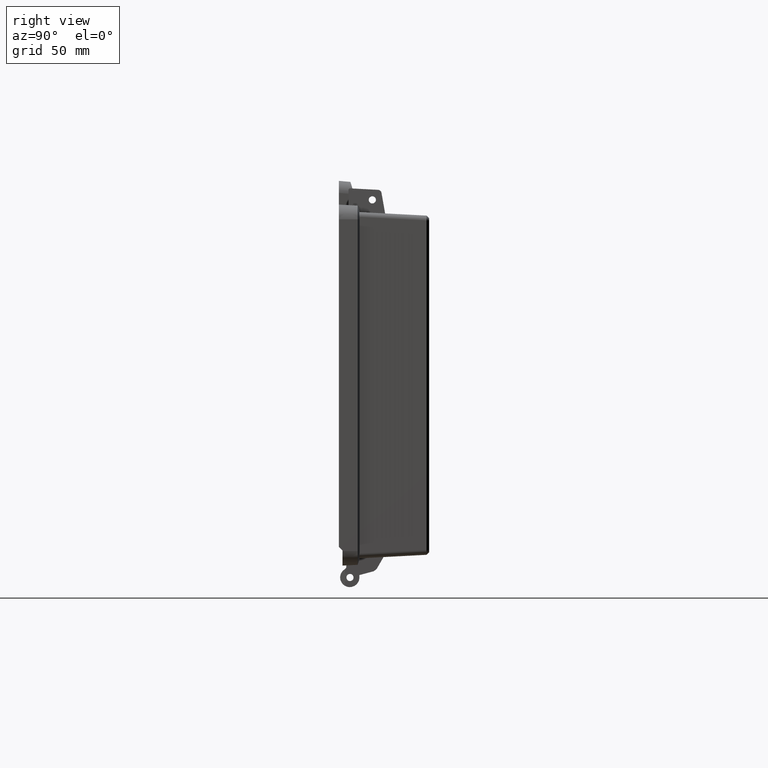
[diagram: clean part render]
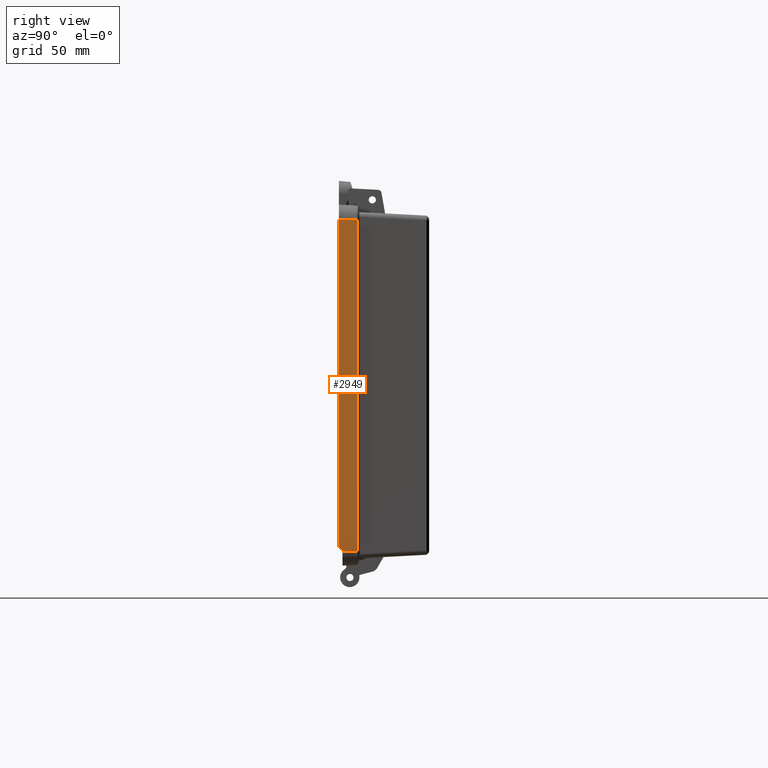
[diagram: same view with one face highlighted and labeled with its STEP entity id]
A machine part, right view. The second image highlights one B-rep face of the part: STEP entity #2949.
In plain terms, the highlighted planar face has unit normal (0.9986, 0.0523, 0).
Its self-contained STEP definition (entity closure, byte-faithful):
#320 = CARTESIAN_POINT ( 'NONE',  ( 125.0524077792830000, -0.9999999999999831200, -68.73550952893730000 ) ) ;
#517 = VERTEX_POINT ( 'NONE', #3892 ) ;
#563 = VERTEX_POINT ( 'NONE', #320 ) ;
#672 = ORIENTED_EDGE ( 'NONE', *, *, #13472, .T. ) ;
#686 = ORIENTED_EDGE ( 'NONE', *, *, #13460, .T. ) ;
#687 = ORIENTED_EDGE ( 'NONE', *, *, #13449, .F. ) ;
#744 = ORIENTED_EDGE ( 'NONE', *, *, #2444, .F. ) ;
#854 = ORIENTED_EDGE ( 'NONE', *, *, #13443, .T. ) ;
#859 = ORIENTED_EDGE ( 'NONE', *, *, #2481, .F. ) ;
#2444 = EDGE_CURVE ( 'NONE', #13699, #13760, #9501, .T. ) ;
#2481 = EDGE_CURVE ( 'NONE', #13632, #13701, #9534, .T. ) ;
#2949 = ADVANCED_FACE ( 'NONE', ( #4589 ), #5404, .T. ) ;
#3892 = CARTESIAN_POINT ( 'NONE',  ( 124.7221525821517400, 5.301644558294508000, 68.99999999999998600 ) ) ;
#3943 = VECTOR ( 'NONE', #6927, 1000.000000000000100 ) ;
#4124 = VECTOR ( 'NONE', #6770, 1000.000000000000000 ) ;
#4589 = FACE_OUTER_BOUND ( 'NONE', #13863, .T. ) ;
#5404 = PLANE ( 'NONE',  #11819 ) ;
#5405 = CARTESIAN_POINT ( 'NONE',  ( 124.9999999999999700, 0.0000000000000000000, -68.99999999999998600 ) ) ;
#5406 = DIRECTION ( 'NONE',  ( 0.9986295347545739400, 0.05233595624294395300, 0.0000000000000000000 ) ) ;
#5407 = DIRECTION ( 'NONE',  ( -0.05233595624294395300, 0.9986295347545739400, 0.0000000000000000000 ) ) ;
#6721 = CARTESIAN_POINT ( 'NONE',  ( 125.1310194482076800, -2.500000000000000000, -68.99999999999998600 ) ) ;
#6770 = DIRECTION ( 'NONE',  ( -3.016910393003143400E-016, 0.0000000000000000000, 1.000000000000000000 ) ) ;
#6927 = DIRECTION ( 'NONE',  ( 0.05233595624294395300, -0.9986295347545739400, -0.0000000000000000000 ) ) ;
#7047 = CARTESIAN_POINT ( 'NONE',  ( 125.0000000000000000, -3.626559582763564200E-016, -68.99999999999998600 ) ) ;
#8512 = CARTESIAN_POINT ( 'NONE',  ( 124.9999999999999700, 0.0000000000000000000, 68.99999999999998600 ) ) ;
#8513 = DIRECTION ( 'NONE',  ( 0.05233595624294395300, -0.9986295347545739400, -0.0000000000000000000 ) ) ;
#8536 = CARTESIAN_POINT ( 'NONE',  ( 125.0524077792830000, -0.9999999999999831200, -68.99999999999998600 ) ) ;
#8537 = DIRECTION ( 'NONE',  ( 6.273334786060752500E-018, -1.197023585407051700E-016, 1.000000000000000000 ) ) ;
#8560 = CARTESIAN_POINT ( 'NONE',  ( 124.7221525821517400, 5.301644558294508900, 68.99999999999998600 ) ) ;
#8561 = DIRECTION ( 'NONE',  ( -0.0000000000000000000, -0.0000000000000000000, 1.000000000000000000 ) ) ;
#8587 = CARTESIAN_POINT ( 'NONE',  ( 125.0192467791621300, -0.3672504239915260200, -69.36825910494576400 ) ) ;
#8588 = DIRECTION ( 'NONE',  ( -0.03703247672027205200, 0.7066217501846225900, -0.7066217501846255900 ) ) ;
#8639 = CARTESIAN_POINT ( 'NONE',  ( 124.7221525821517600, 5.301644558294509800, -68.99999999999998600 ) ) ;
#8660 = CARTESIAN_POINT ( 'NONE',  ( 125.1310194482076800, -2.500000000000000000, -67.23550952893727100 ) ) ;
#8661 = CARTESIAN_POINT ( 'NONE',  ( 125.0524077792830300, -0.9999999999999831200, -68.99999999999998600 ) ) ;
#8676 = CARTESIAN_POINT ( 'NONE',  ( 125.1310194482076500, -2.500000000000000000, 68.99999999999998600 ) ) ;
#8846 = VECTOR ( 'NONE', #8513, 1000.000000000000100 ) ;
#8851 = VECTOR ( 'NONE', #8537, 1000.000000000000000 ) ;
#8861 = VECTOR ( 'NONE', #8561, 1000.000000000000000 ) ;
#8872 = VECTOR ( 'NONE', #8588, 1000.000000000000100 ) ;
#8967 = LINE ( 'NONE', #8512, #8846 ) ;
#8972 = LINE ( 'NONE', #8536, #8851 ) ;
#8982 = LINE ( 'NONE', #8560, #8861 ) ;
#8992 = LINE ( 'NONE', #8587, #8872 ) ;
#9501 = LINE ( 'NONE', #6721, #4124 ) ;
#9534 = LINE ( 'NONE', #7047, #3943 ) ;
#11819 = AXIS2_PLACEMENT_3D ( 'NONE', #5405, #5406, #5407 ) ;
#13443 = EDGE_CURVE ( 'NONE', #517, #13760, #8967, .T. ) ;
#13449 = EDGE_CURVE ( 'NONE', #13701, #563, #8972, .T. ) ;
#13460 = EDGE_CURVE ( 'NONE', #13632, #517, #8982, .T. ) ;
#13472 = EDGE_CURVE ( 'NONE', #13699, #563, #8992, .T. ) ;
#13632 = VERTEX_POINT ( 'NONE', #8639 ) ;
#13699 = VERTEX_POINT ( 'NONE', #8660 ) ;
#13701 = VERTEX_POINT ( 'NONE', #8661 ) ;
#13760 = VERTEX_POINT ( 'NONE', #8676 ) ;
#13863 = EDGE_LOOP ( 'NONE', ( #744, #672, #687, #859, #686, #854 ) ) ;